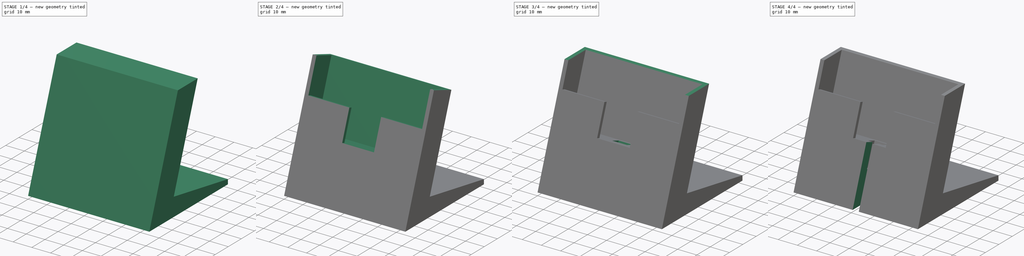
[diagram: build sequence overview — one tinted view per stage of 4, left to right]
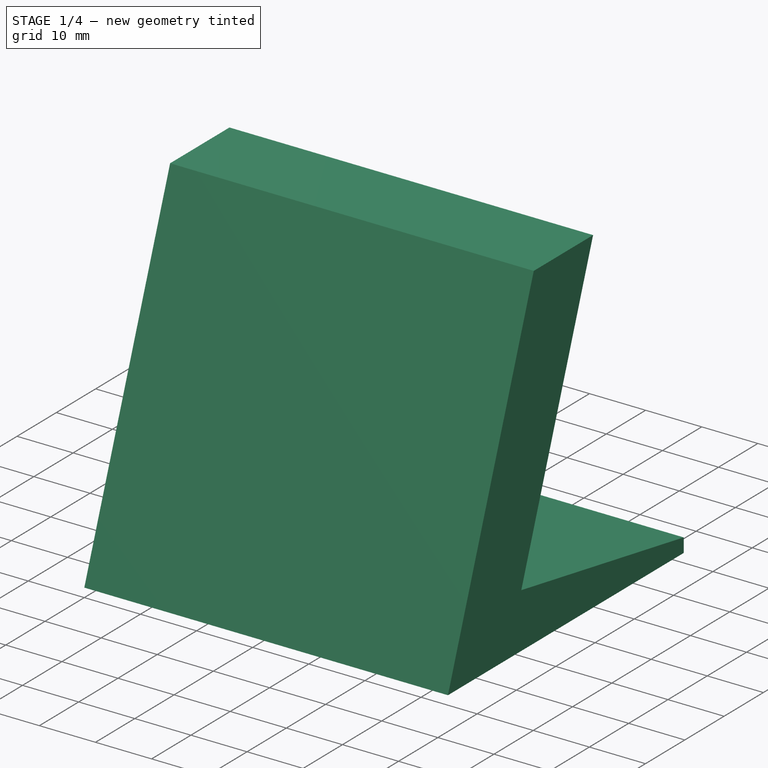
[diagram: stage 1 of 4 — iso view after this stage's code; geometry added in this stage tinted green]
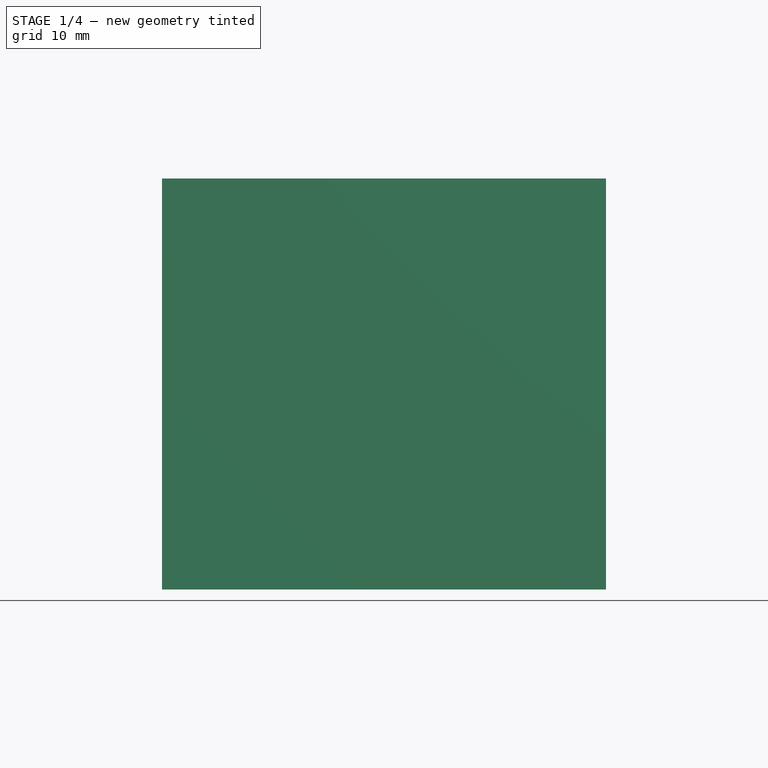
[diagram: stage 1 of 4 — front view after this stage's code; geometry added in this stage tinted green]
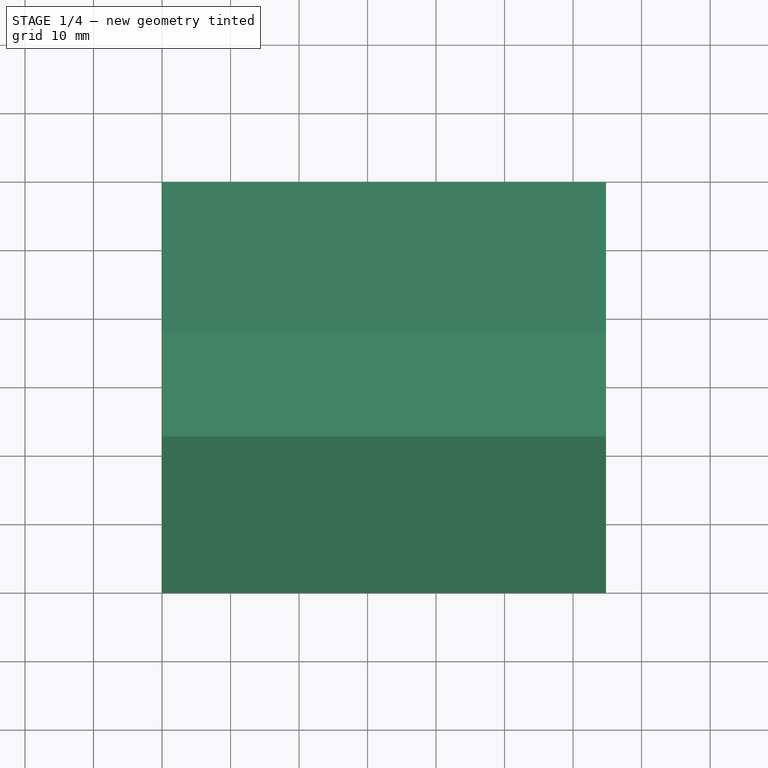
[diagram: stage 1 of 4 — top view after this stage's code; geometry added in this stage tinted green]
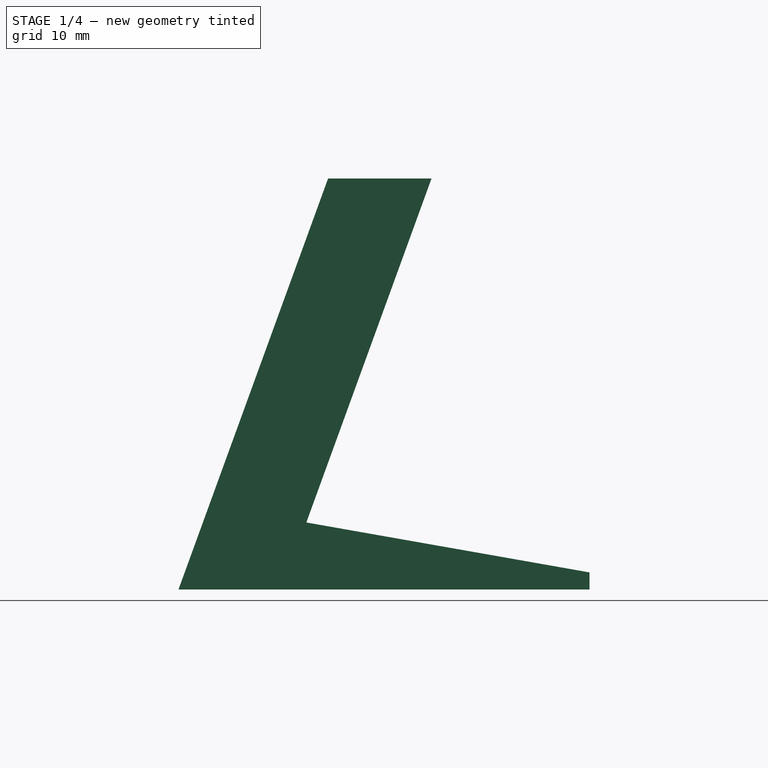
[diagram: stage 1 of 4 — right view after this stage's code; geometry added in this stage tinted green]
FCSTD DOCUMENT  (FreeCAD 0.16R6706 (Git))
Label: dock5
License: All rights reserved
LicenseURL: http://en.wikipedia.org/wiki/All_rights_reserved
objects: Sketcher::SketchObject×11, PartDesign::Pocket×10, PartDesign::Pad×1, PartDesign::Chamfer×1
note: 34 computed .brp shape members not serialized (recipe doc carries the construction recipe); baked Part::Feature solids carry a one-line shape summary decoded from their .brp

FEATURE [Sketcher::SketchObject] Sketch
  sketch-geometry (7):
    g0: LineSegment [constr] StartX=2 StartY=5.79943 StartZ=0 EndX=62.8 EndY=5.79943 EndZ=0
    g1: LineSegment StartX=0 StartY=0 StartZ=0 EndX=64.8 EndY=0 EndZ=0
    g2: LineSegment StartX=64.8 StartY=0 StartZ=0 EndX=64.8 EndY=60 EndZ=0
    g3: LineSegment StartX=64.8 StartY=60 StartZ=0 EndX=0 EndY=60 EndZ=0
    g4: LineSegment StartX=0 StartY=60 StartZ=0 EndX=0 EndY=0 EndZ=0
    g5: LineSegment [constr] StartX=2 StartY=5.79943 StartZ=0 EndX=0 EndY=5.79943 EndZ=0
    g6: LineSegment [constr] StartX=62.8 StartY=5.79943 StartZ=0 EndX=64.8 EndY=5.79943 EndZ=0
  constraints (20):
    c: Horizontal(g0)
    c: DistanceX(g0,g0) = 60.8
    c: Coincident(g1,g2)
    c: Coincident(g2,g3)
    c: Coincident(g3,g4)
    c: Coincident(g4,g1)
    c: Horizontal(g1)
    c: Horizontal(g3)
    c: Vertical(g2)
    c: Vertical(g4)
    c: Coincident(g1,g-1)
    c: Coincident(g5,g0)
    c: PointOnObject(g5,g4)
    c: Horizontal(g5)
    c: DistanceX(g5,g5) = 2
    c: Coincident(g6,g0)
    c: PointOnObject(g6,g2)
    c: Equal(g6,g5)
    c: Horizontal(g6)
    c: DistanceY(g2,g2) = 60
FEATURE [PartDesign::Pad] Pad
  Length = 60
  Length2 = 100
  Sketch = -> Sketch
  Type = 0
FEATURE [Sketcher::SketchObject] Sketch001
  ExternalGeometry = -> [Pad]
  Placement = pos=(64.8,0,0) rot=(0.57735,0.57735,0.57735;2.0944rad)
  Support = -> Pad [Face2]
  sketch-geometry (3):
    g0: LineSegment StartX=0 StartY=0 StartZ=0 EndX=0 EndY=60 EndZ=0
    g1: LineSegment StartX=0 StartY=0 StartZ=0 EndX=21.8382 EndY=60 EndZ=0
    g2: LineSegment StartX=21.8382 StartY=60 StartZ=0 EndX=0 EndY=60 EndZ=0
  constraints (7):
    c: Coincident(g0,g-1)
    c: Coincident(g0,g-4)
    c: Coincident(g1,g-1)
    c: PointOnObject(g1,g-4)
    c: Coincident(g2,g1)
    c: Coincident(g2,g0)
    c: Angle(g1,g-3) = 0.349066
FEATURE [PartDesign::Pocket] Pocket
  Length = 5
  Sketch = -> Sketch001
  Type = 1
FEATURE [Sketcher::SketchObject] Sketch002
  ExternalGeometry = -> [Pocket]
  Placement = pos=(64.8,0,0) rot=(0.57735,0.57735,0.57735;2.0944rad)
  Support = -> Pocket [Face3]
  sketch-geometry (4):
    g0: LineSegment StartX=36.9382 StartY=60 StartZ=0 EndX=18.6629 EndY=9.78885 EndZ=0
    g1: LineSegment StartX=18.6629 StartY=9.78885 StartZ=0 EndX=60 EndY=2.5 EndZ=0
    g2: LineSegment StartX=36.9382 StartY=60 StartZ=0 EndX=60 EndY=60 EndZ=0
    g3: LineSegment StartX=60 StartY=60 StartZ=0 EndX=60 EndY=2.5 EndZ=0
  constraints (11):
    c: PointOnObject(g0,g-3)
    c: Coincident(g1,g0)
    c: PointOnObject(g1,g-4)
    c: Parallel(g0,g-5)
    c: Coincident(g2,g0)
    c: Coincident(g2,g-4)
    c: Coincident(g3,g2)
    c: Coincident(g3,g1)
    c: DistanceX(g-5,g0) = 15.1
    c: DistanceY(g-4,g1) = 2.5
    c: Angle(g1,g0) = 1.39626
FEATURE [PartDesign::Pocket] Pocket001
  Length = 5
  Sketch = -> Sketch002
  Type = 1
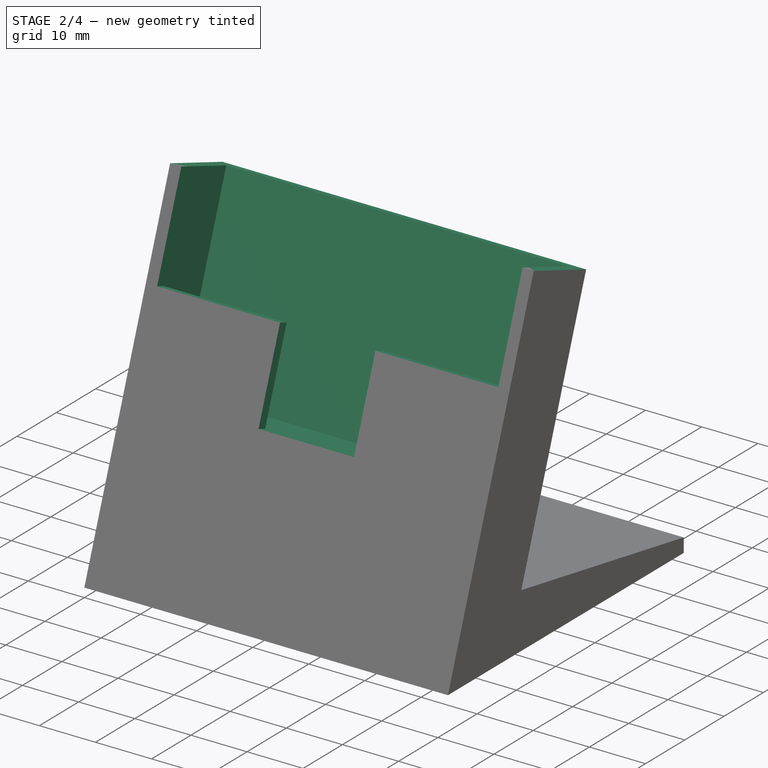
[diagram: stage 2 of 4 — iso view after this stage's code; geometry added in this stage tinted green]
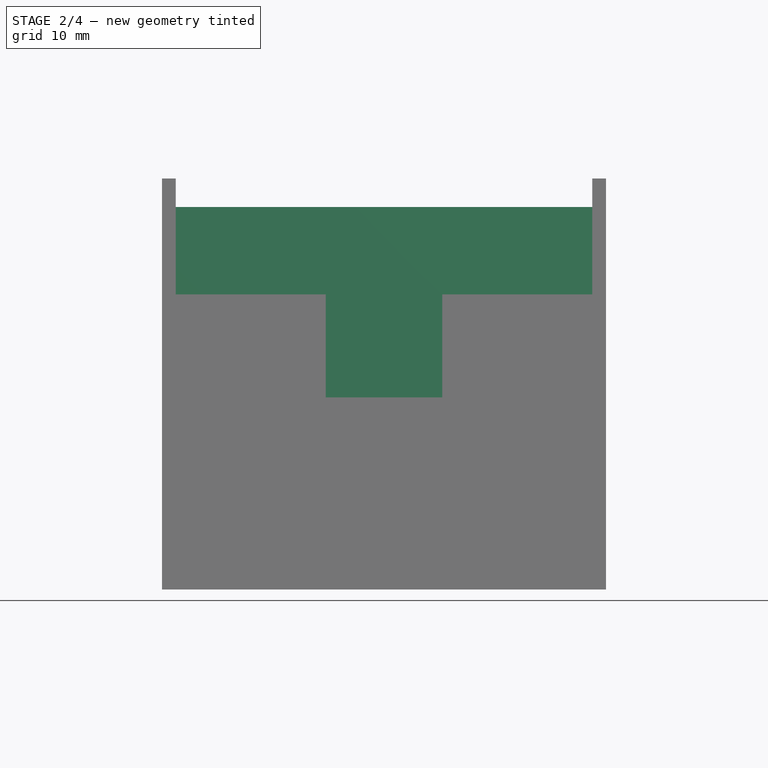
[diagram: stage 2 of 4 — front view after this stage's code; geometry added in this stage tinted green]
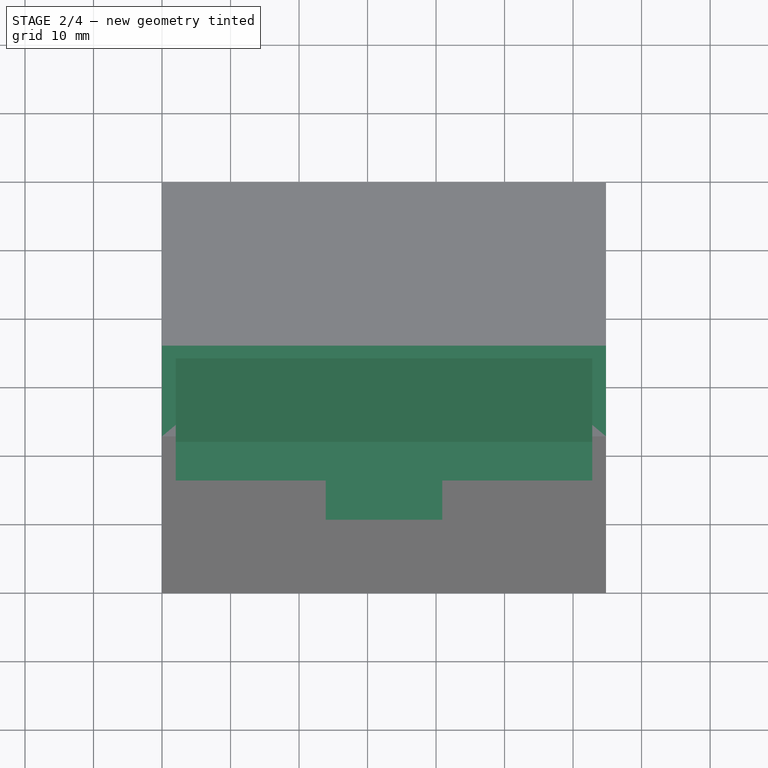
[diagram: stage 2 of 4 — top view after this stage's code; geometry added in this stage tinted green]
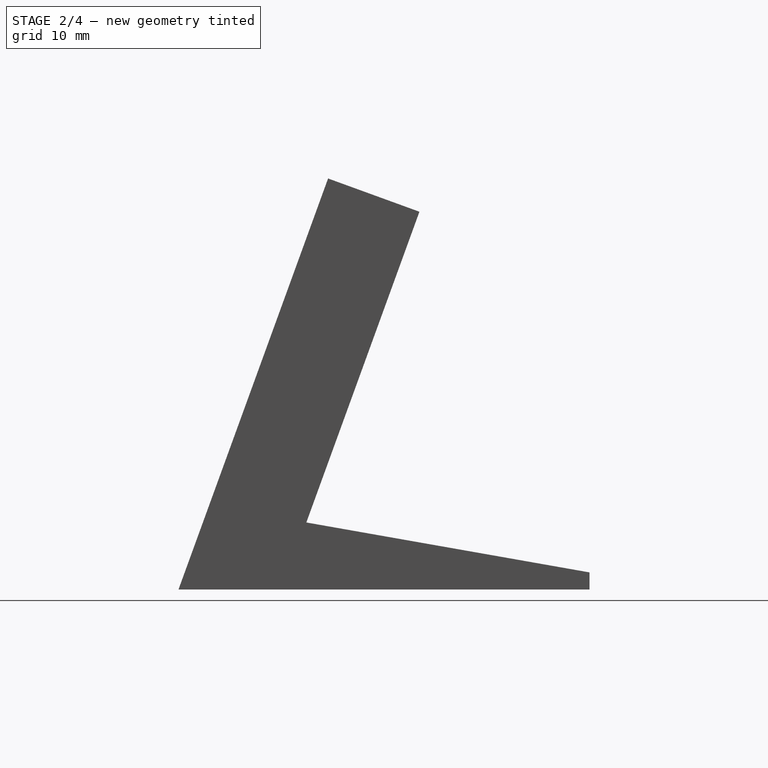
[diagram: stage 2 of 4 — right view after this stage's code; geometry added in this stage tinted green]
FEATURE [Sketcher::SketchObject] Sketch003
  ExternalGeometry = -> [Pocket001]
  Placement = pos=(64.8,0,0) rot=(0.57735,0.57735,0.57735;2.0944rad)
  Support = -> Pocket001 [Face3]
  sketch-geometry (3):
    g0: LineSegment StartX=21.8382 StartY=60 StartZ=0 EndX=35.1718 EndY=55.147 EndZ=0
    g1: LineSegment StartX=36.9382 StartY=60 StartZ=0 EndX=35.1718 EndY=55.147 EndZ=0
    g2: LineSegment StartX=36.9382 StartY=60 StartZ=0 EndX=21.8382 EndY=60 EndZ=0
  constraints (7):
    c: Coincident(g0,g-3)
    c: PointOnObject(g0,g-4)
    c: Coincident(g1,g-4)
    c: Coincident(g1,g0)
    c: Coincident(g2,g1)
    c: Coincident(g2,g0)
    c: Perpendicular(g-4,g0)
FEATURE [PartDesign::Pocket] Pocket002
  Length = 5
  Sketch = -> Sketch003
  Type = 1
FEATURE [Sketcher::SketchObject] Sketch004
  ExternalGeometry = -> [Pocket002]
  Placement = pos=(0,21.8382,60) rot=(-1,0,0;0.349066rad)
  Support = -> Pocket002 [Face6]
  sketch-geometry (8):
    g0: LineSegment StartX=2 StartY=12.1894 StartZ=0 EndX=62.8 EndY=12.1894 EndZ=0
    g1: LineSegment StartX=62.8 StartY=12.1894 StartZ=0 EndX=62.8 EndY=1.78936 EndZ=0
    g2: LineSegment StartX=62.8 StartY=1.78936 StartZ=0 EndX=2 EndY=1.78936 EndZ=0
    g3: LineSegment StartX=2 StartY=1.78936 StartZ=0 EndX=2 EndY=12.1894 EndZ=0
    g4: LineSegment [constr] StartX=2 StartY=12.1894 StartZ=0 EndX=0 EndY=12.1894 EndZ=0
    g5: LineSegment [constr] StartX=2 StartY=12.1894 StartZ=0 EndX=2 EndY=14.1894 EndZ=0
    g6: LineSegment [constr] StartX=62.8 StartY=12.1894 StartZ=0 EndX=64.8 EndY=12.1894 EndZ=0
    g7: LineSegment [constr] StartX=62.8 StartY=12.1894 StartZ=0 EndX=62.8 EndY=14.1894 EndZ=0
  constraints (25):
    c: Coincident(g0,g1)
    c: Coincident(g1,g2)
    c: Coincident(g2,g3)
    c: Coincident(g3,g0)
    c: Horizontal(g0)
    c: Horizontal(g2)
    c: Vertical(g1)
    c: Vertical(g3)
    c: Coincident(g4,g0)
    c: PointOnObject(g4,g-3)
    c: Horizontal(g4)
    c: DistanceX(g4,g4) = 2
    c: Coincident(g5,g0)
    c: PointOnObject(g5,g-4)
    c: Vertical(g5)
    c: DistanceY(g5,g5) = 2
    c: Coincident(g6,g0)
    c: PointOnObject(g6,g-6)
    c: Horizontal(g6)
    c: Equal(g6,g4)
    c: Coincident(g7,g0)
    c: PointOnObject(g7,g-4)
    c: Vertical(g7)
    c: Equal(g7,g5)
    c: Distance(g3) = 10.4
FEATURE [PartDesign::Pocket] Pocket003
  Length = 34
  Sketch = -> Sketch004
  Type = 0
FEATURE [Sketcher::SketchObject] Sketch005
  ExternalGeometry = -> [Pocket003]
  Placement = pos=(0,1.68145,-0.611997) rot=(0,0.819152,0.573576;3.14159rad)
  Support = -> Pocket003 [Face12]
  sketch-geometry (8):
    g0: LineSegment StartX=-62.8 StartY=45.8507 StartZ=0 EndX=-40.9 EndY=45.8507 EndZ=0
    g1: LineSegment StartX=-40.9 StartY=45.8507 StartZ=0 EndX=-40.9 EndY=29.8507 EndZ=0
    g2: LineSegment StartX=-40.9 StartY=29.8507 StartZ=0 EndX=-23.9 EndY=29.8507 EndZ=0
    g3: LineSegment StartX=-23.9 StartY=29.8507 StartZ=0 EndX=-23.9 EndY=45.8507 EndZ=0
    g4: LineSegment StartX=-23.9 StartY=45.8507 StartZ=0 EndX=-2 EndY=45.8507 EndZ=0
    g5: LineSegment StartX=-62.8 StartY=45.8507 StartZ=0 EndX=-62.8 EndY=63.8507 EndZ=0
    g6: LineSegment StartX=-2 StartY=45.8507 StartZ=0 EndX=-2 EndY=63.8507 EndZ=0
    g7: LineSegment StartX=-2 StartY=63.8507 StartZ=0 EndX=-62.8 EndY=63.8507 EndZ=0
  constraints (22):
    c: Horizontal(g0)
    c: Vertical(g1)
    c: PointOnObject(g0,g-4)
    c: Coincident(g0,g1)
    c: PointOnObject(g1,g-3)
    c: DistanceY(g1,g1) = 16
    c: Coincident(g2,g1)
    c: PointOnObject(g2,g-3)
    c: DistanceX(g2,g2) = 17
    c: Coincident(g2,g3)
    c: Vertical(g3)
    c: Equal(g3,g1)
    c: Coincident(g4,g3)
    c: PointOnObject(g4,g-5)
    c: Horizontal(g4)
    c: Equal(g4,g0)
    c: Coincident(g5,g0)
    c: Coincident(g5,g-6)
    c: Coincident(g6,g4)
    c: Coincident(g6,g-6)
    c: Coincident(g7,g6)
    c: Coincident(g7,g5)
FEATURE [PartDesign::Pocket] Pocket004
  Length = 5
  Sketch = -> Sketch005
  Type = 1
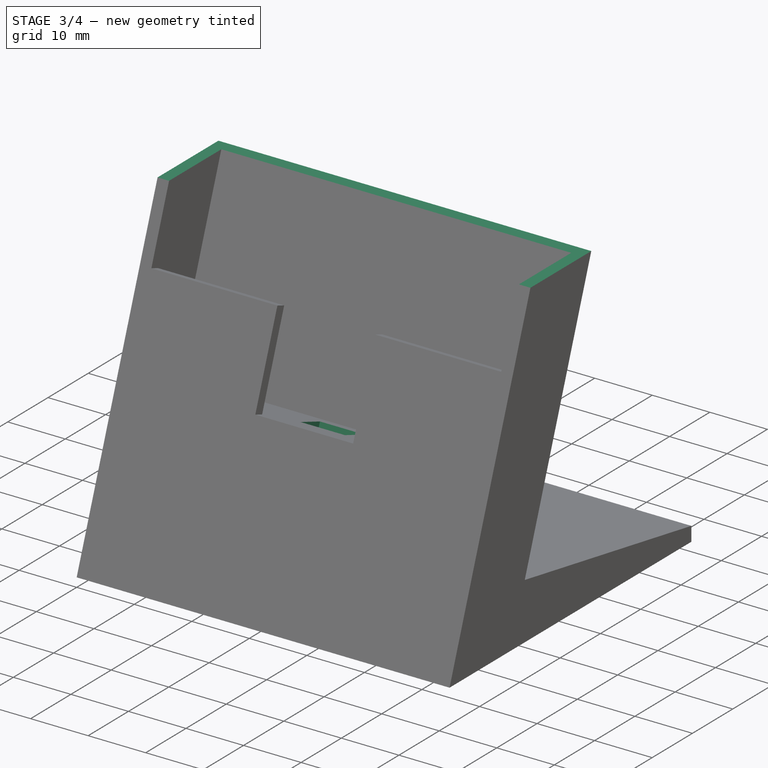
[diagram: stage 3 of 4 — iso view after this stage's code; geometry added in this stage tinted green]
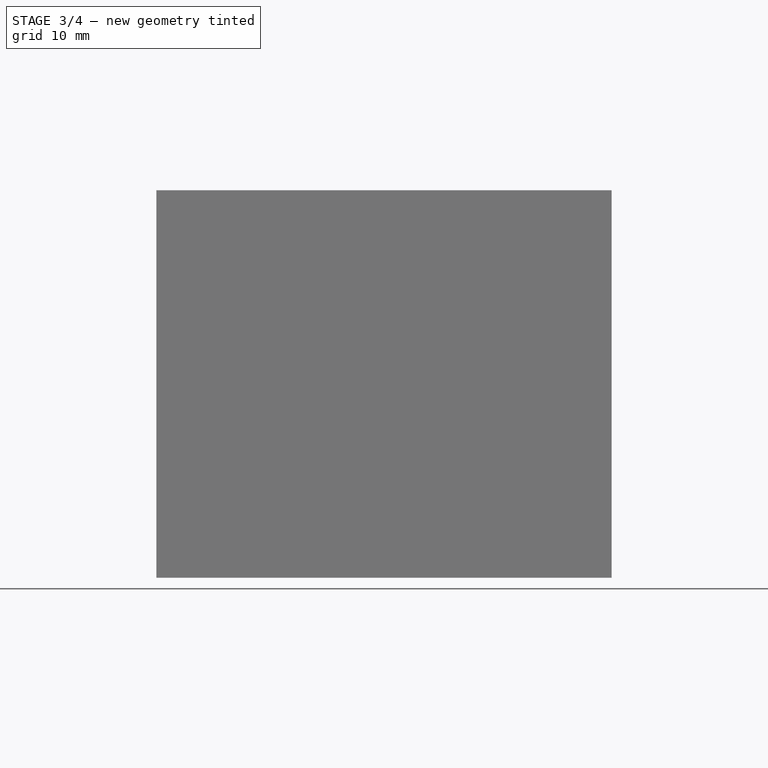
[diagram: stage 3 of 4 — front view after this stage's code; geometry added in this stage tinted green]
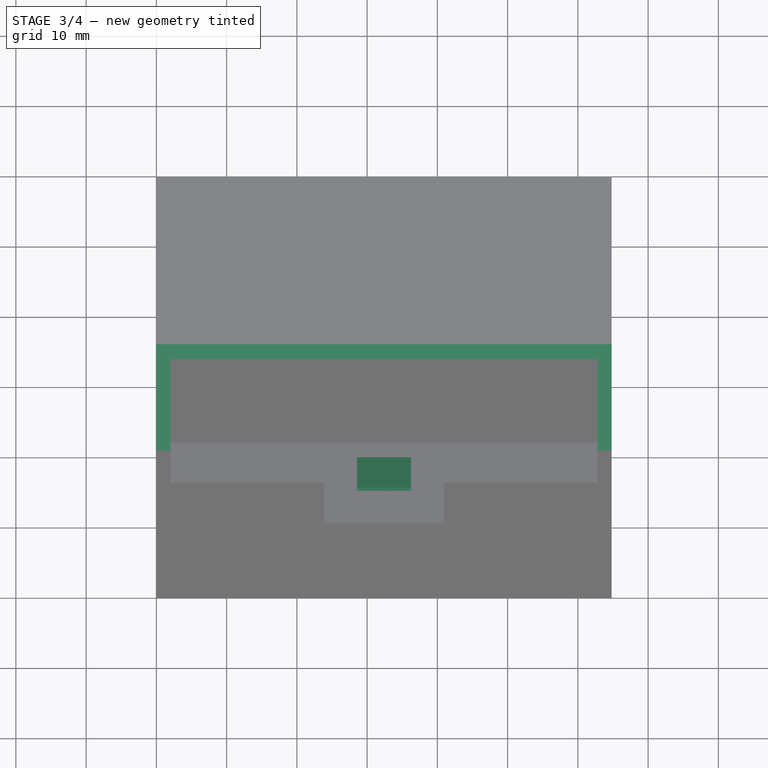
[diagram: stage 3 of 4 — top view after this stage's code; geometry added in this stage tinted green]
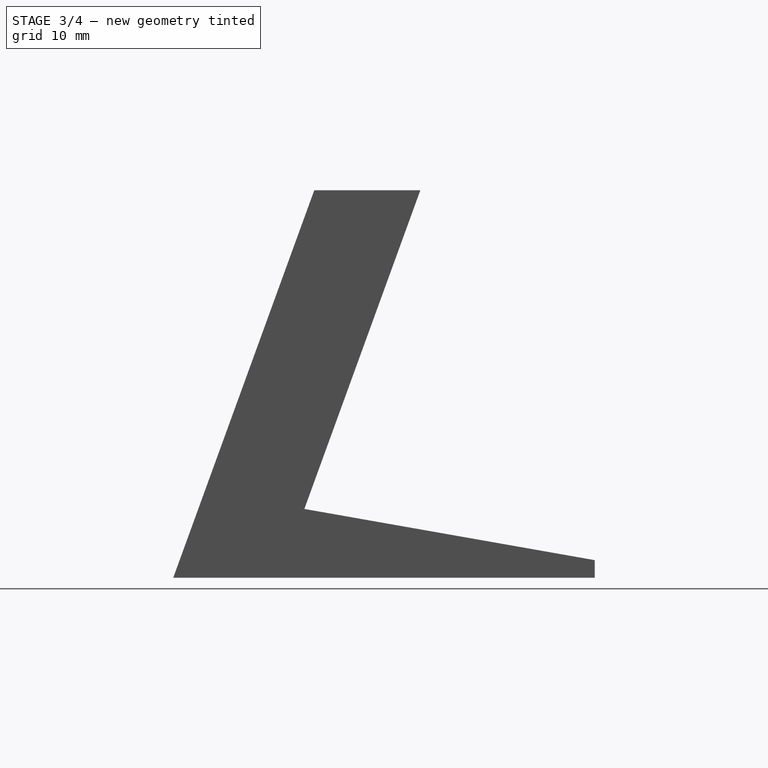
[diagram: stage 3 of 4 — right view after this stage's code; geometry added in this stage tinted green]
FEATURE [Sketcher::SketchObject] Sketch006
  ExternalGeometry = -> [Pocket004]
  Placement = pos=(64.8,0,0) rot=(0.57735,0.57735,0.57735;2.0944rad)
  Support = -> Pocket004 [Face3]
  sketch-geometry (3):
    g0: LineSegment StartX=35.1718 StartY=55.147 StartZ=0 EndX=20.0718 EndY=55.147 EndZ=0
    g1: LineSegment StartX=20.0718 StartY=55.147 StartZ=0 EndX=21.8382 EndY=60 EndZ=0
    g2: LineSegment StartX=21.8382 StartY=60 StartZ=0 EndX=35.1718 EndY=55.147 EndZ=0
  constraints (7):
    c: Coincident(g0,g-3)
    c: PointOnObject(g0,g-4)
    c: Horizontal(g0)
    c: Coincident(g1,g0)
    c: Coincident(g1,g-4)
    c: Coincident(g2,g1)
    c: Coincident(g2,g0)
FEATURE [PartDesign::Pocket] Pocket005
  Length = 5
  Sketch = -> Sketch006
  Type = 1
FEATURE [Sketcher::SketchObject] Sketch007
  ExternalGeometry = -> [Pocket005]
  Placement = pos=(0,10.2095,28.0505) rot=(-1,0,0;0.349066rad)
  Support = -> Pocket005 [Face20]
  sketch-geometry (7):
    g0: LineSegment StartX=28.55 StartY=9.98936 StartZ=0 EndX=36.25 EndY=9.98936 EndZ=0
    g1: LineSegment StartX=36.25 StartY=9.98936 StartZ=0 EndX=36.25 EndY=4.88936 EndZ=0
    g2: LineSegment StartX=36.25 StartY=4.88936 StartZ=0 EndX=28.55 EndY=4.88936 EndZ=0
    g3: LineSegment StartX=28.55 StartY=4.88936 StartZ=0 EndX=28.55 EndY=9.98936 EndZ=0
    g4: LineSegment [constr] StartX=28.55 StartY=9.98936 StartZ=0 EndX=2 EndY=9.98936 EndZ=0
    g5: LineSegment [constr] StartX=36.25 StartY=9.98936 StartZ=0 EndX=62.8 EndY=9.98936 EndZ=0
    g6: LineSegment [constr] StartX=28.55 StartY=9.98936 StartZ=0 EndX=28.55 EndY=12.1894 EndZ=0
  constraints (21):
    c: Coincident(g0,g1)
    c: Coincident(g1,g2)
    c: Coincident(g2,g3)
    c: Coincident(g3,g0)
    c: Horizontal(g0)
    c: Horizontal(g2)
    c: Vertical(g1)
    c: Vertical(g3)
    c: DistanceX(g0,g0) = 7.7
    c: DistanceY(g1,g1) = 5.1
    c: Coincident(g4,g0)
    c: PointOnObject(g4,g-5)
    c: Horizontal(g4)
    c: Coincident(g5,g0)
    c: PointOnObject(g5,g-4)
    c: Horizontal(g5)
    c: Equal(g5,g4)
    c: Coincident(g6,g0)
    c: PointOnObject(g6,g-3)
    c: Vertical(g6)
    c: DistanceY(g6,g6) = 2.2
FEATURE [PartDesign::Pocket] Pocket006
  Length = 12
  Sketch = -> Sketch007
  Type = 0
FEATURE [Sketcher::SketchObject] Sketch008
  ExternalGeometry = -> [Pocket006]
  Placement = pos=(0,6.10529,16.7741) rot=(-1,0,0;0.349066rad)
  Support = -> Pocket006 [Face26]
  sketch-geometry (6):
    g0: Circle CenterX=32.4 CenterY=7.43936 CenterZ=0 NormalX=0 NormalY=0 NormalZ=1 Radius=2.1
    g1: LineSegment [constr] StartX=32.4 StartY=7.43936 StartZ=0 EndX=28.55 EndY=7.43936 EndZ=0
    g2: LineSegment [constr] StartX=32.4 StartY=7.43936 StartZ=0 EndX=34.2174 EndY=8.49147 EndZ=0
    g3: LineSegment [constr] StartX=32.4 StartY=7.43936 StartZ=0 EndX=36.25 EndY=7.43936 EndZ=0
    g4: LineSegment [constr] StartX=32.4 StartY=7.43936 StartZ=0 EndX=32.4 EndY=9.98936 EndZ=0
    g5: LineSegment [constr] StartX=32.4 StartY=7.43936 StartZ=0 EndX=32.4 EndY=4.88936 EndZ=0
  constraints (17):
    c: Coincident(g1,g0)
    c: PointOnObject(g1,g-4)
    c: Horizontal(g1)
    c: Coincident(g2,g0)
    c: PointOnObject(g2,g0)
    c: Distance(g2) = 2.1
    c: Coincident(g3,g0)
    c: PointOnObject(g3,g-3)
    c: Horizontal(g3)
    c: Equal(g3,g1)
    c: Coincident(g4,g0)
    c: PointOnObject(g4,g-5)
    c: Vertical(g4)
    c: Coincident(g5,g0)
    c: PointOnObject(g5,g-6)
    c: Vertical(g5)
    c: Equal(g5,g4)
FEATURE [PartDesign::Pocket] Pocket007
  Length = 14
  Sketch = -> Sketch008
  Type = 1
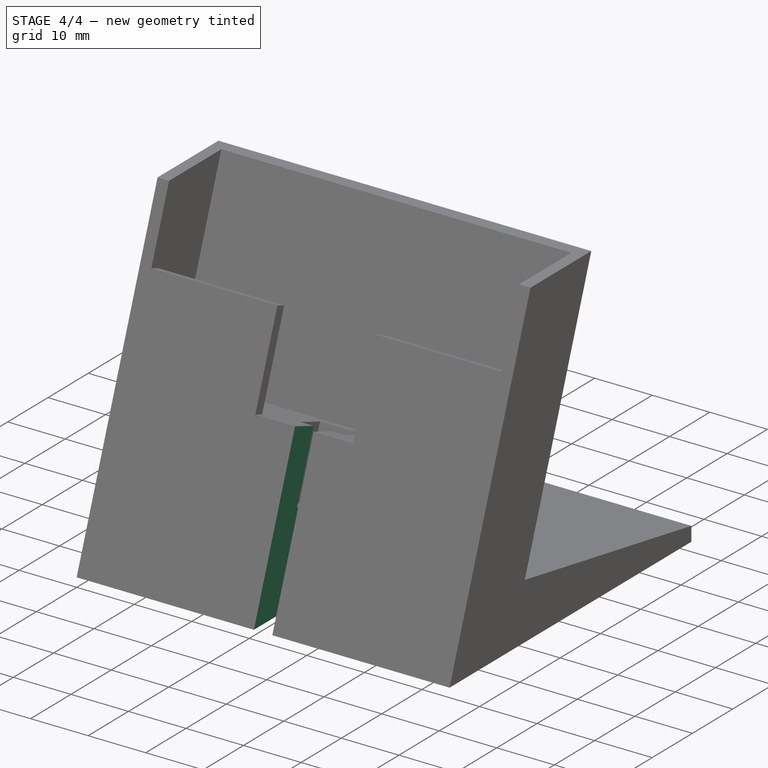
[diagram: stage 4 of 4 — iso view after this stage's code; geometry added in this stage tinted green]
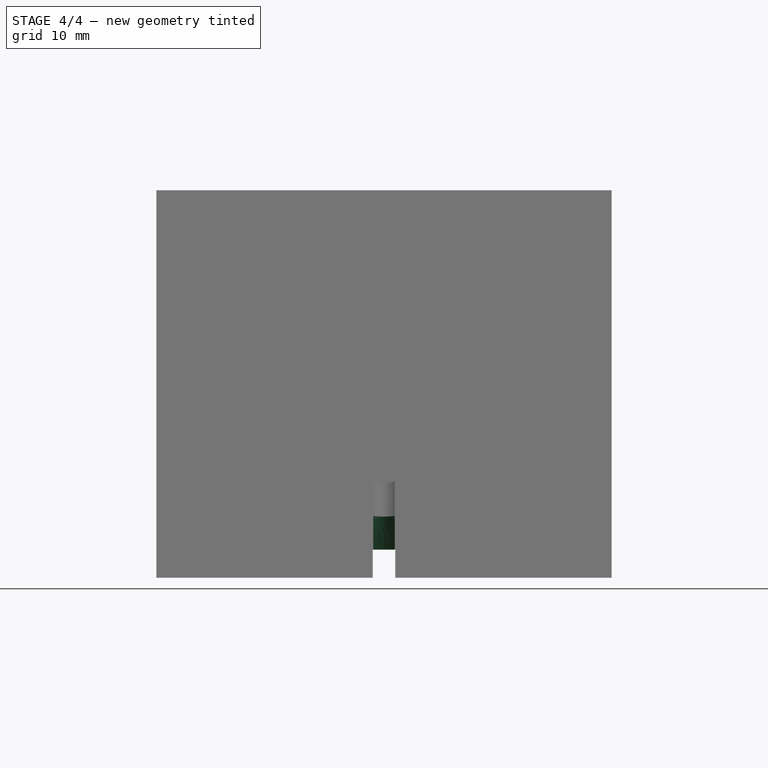
[diagram: stage 4 of 4 — front view after this stage's code; geometry added in this stage tinted green]
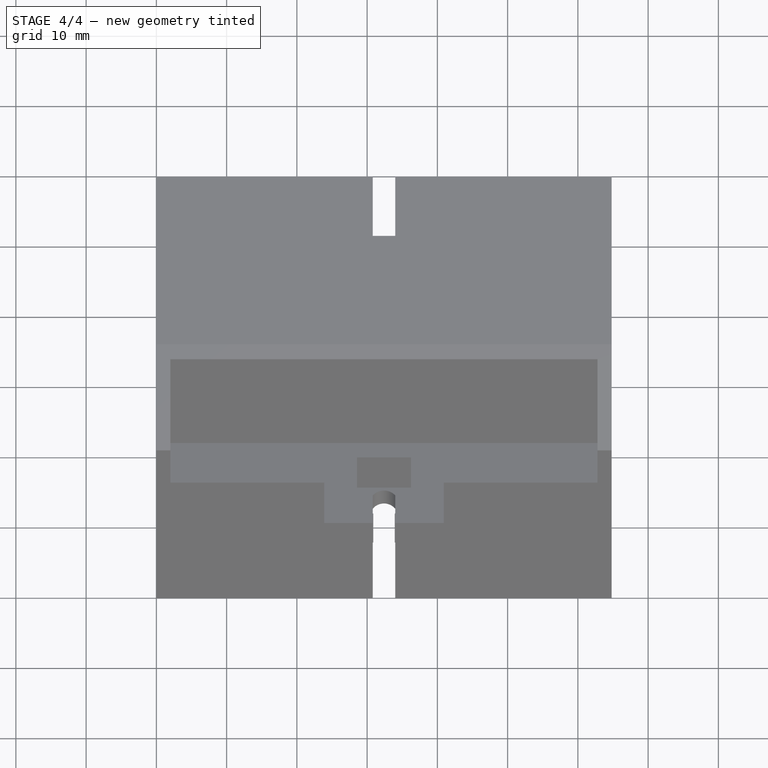
[diagram: stage 4 of 4 — top view after this stage's code; geometry added in this stage tinted green]
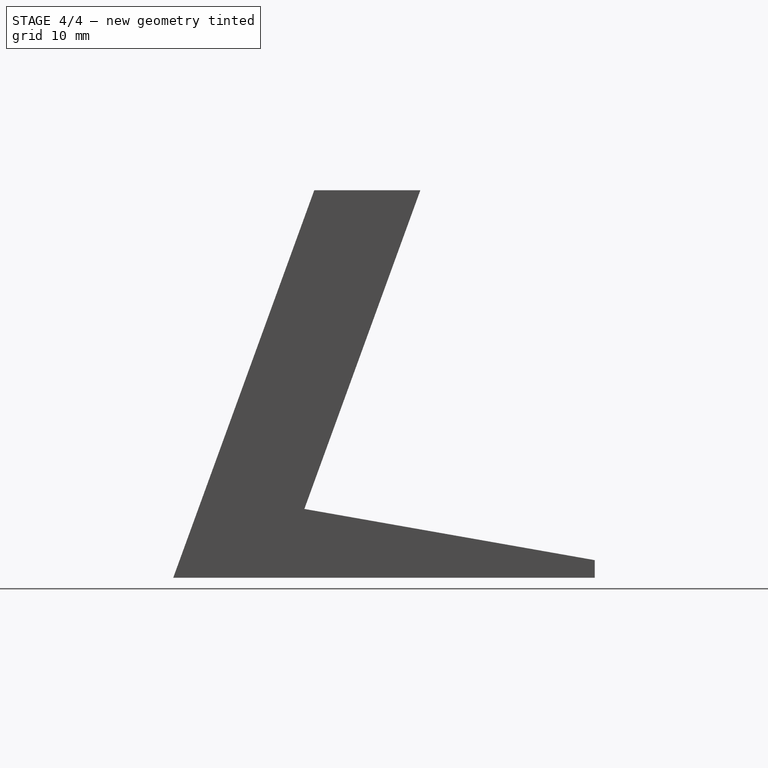
[diagram: stage 4 of 4 — right view after this stage's code; geometry added in this stage tinted green]
FEATURE [Sketcher::SketchObject] Sketch009
  ExternalGeometry = -> [Pocket007]
  Placement = pos=(0,0,0) rot=(1,0,0;1.22173rad)
  Support = -> Pocket007 [Face2]
  sketch-geometry (6):
    g0: LineSegment StartX=30.8 StartY=29.8507 StartZ=0 EndX=34 EndY=29.8507 EndZ=0
    g1: LineSegment StartX=34 StartY=29.8507 StartZ=0 EndX=34 EndY=0 EndZ=0
    g2: LineSegment StartX=34 StartY=0 StartZ=0 EndX=30.8 EndY=0 EndZ=0
    g3: LineSegment StartX=30.8 StartY=0 StartZ=0 EndX=30.8 EndY=29.8507 EndZ=0
    g4: LineSegment [constr] StartX=34 StartY=21.0859 StartZ=0 EndX=64.8 EndY=21.0859 EndZ=0
    g5: LineSegment [constr] StartX=30.8 StartY=20.2812 StartZ=0 EndX=0 EndY=20.2812 EndZ=0
  constraints (14):
    c: Coincident(g0,g1)
    c: Coincident(g1,g2)
    c: Coincident(g2,g3)
    c: Coincident(g3,g0)
    c: Horizontal(g0)
    c: Horizontal(g2)
    c: Vertical(g1)
    c: Vertical(g3)
    c: PointOnObject(g4,g1)
    c: Horizontal(g4)
    c: PointOnObject(g5,g3)
    c: Horizontal(g5)
    c: Equal(g5,g4)
    c: DistanceX(g2,g2) = 3.2
FEATURE [PartDesign::Pocket] Pocket008
  Length = 6
  Sketch = -> Sketch009
  Type = 0
  UpToFace = -> Pocket007 [Face24]
FEATURE [Sketcher::SketchObject] Sketch010
  ExternalGeometry = -> [Pocket008]
  Placement = pos=(0,60,0) rot=(0,0.707107,0.707107;3.14159rad)
  Support = -> Pocket008 [Face3]
  sketch-geometry (6):
    g0: LineSegment StartX=-34 StartY=0 StartZ=0 EndX=-30.8 EndY=0 EndZ=0
    g1: LineSegment StartX=-30.8 StartY=0 StartZ=0 EndX=-30.8 EndY=4 EndZ=0
    g2: LineSegment StartX=-30.8 StartY=4 StartZ=0 EndX=-34 EndY=4 EndZ=0
    g3: LineSegment StartX=-34 StartY=4 StartZ=0 EndX=-34 EndY=0 EndZ=0
    g4: LineSegment [constr] StartX=-30.8 StartY=0 StartZ=0 EndX=0 EndY=0 EndZ=0
    g5: LineSegment [constr] StartX=-34 StartY=0 StartZ=0 EndX=-64.8 EndY=0 EndZ=0
  constraints (16):
    c: Coincident(g0,g1)
    c: Coincident(g1,g2)
    c: Coincident(g2,g3)
    c: Coincident(g3,g0)
    c: Horizontal(g0)
    c: Horizontal(g2)
    c: Vertical(g1)
    c: Vertical(g3)
    c: PointOnObject(g0,g-1)
    c: DistanceX(g2,g2) = 3.2
    c: DistanceY(g1,g1) = 4
    c: Coincident(g4,g0)
    c: Coincident(g4,g-1)
    c: Coincident(g5,g0)
    c: Coincident(g5,g-3)
    c: Equal(g4,g5)
FEATURE [PartDesign::Pocket] Pocket009
  Length = 5
  Sketch = -> Sketch010
  Type = 1
FEATURE [PartDesign::Chamfer] Chamfer
  Base = -> Pocket009 [Edge25]
  Size = 5
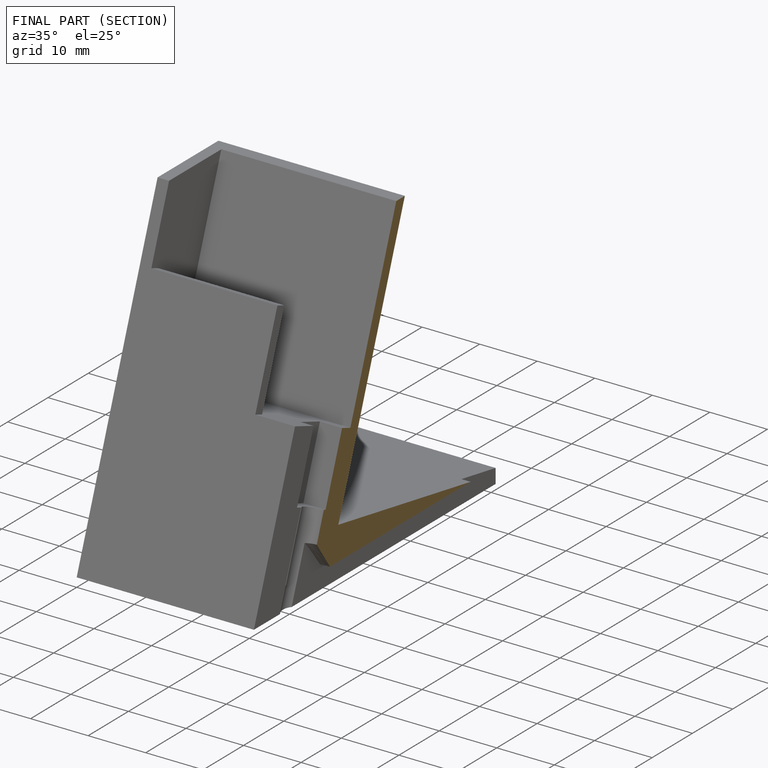
[diagram: finished part — half-section view (interior)]
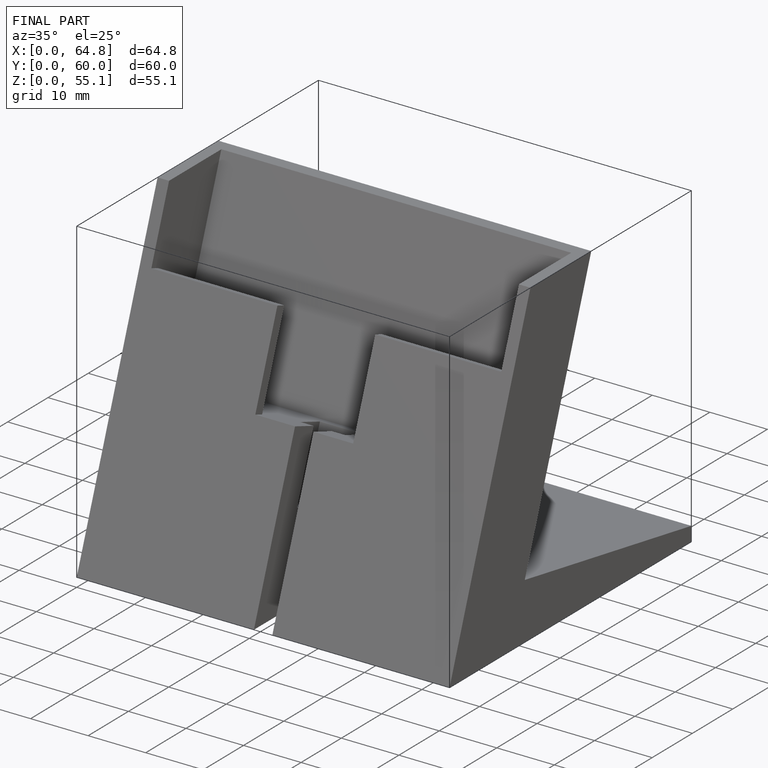
[diagram: finished part — iso view with bounding-box wireframe]
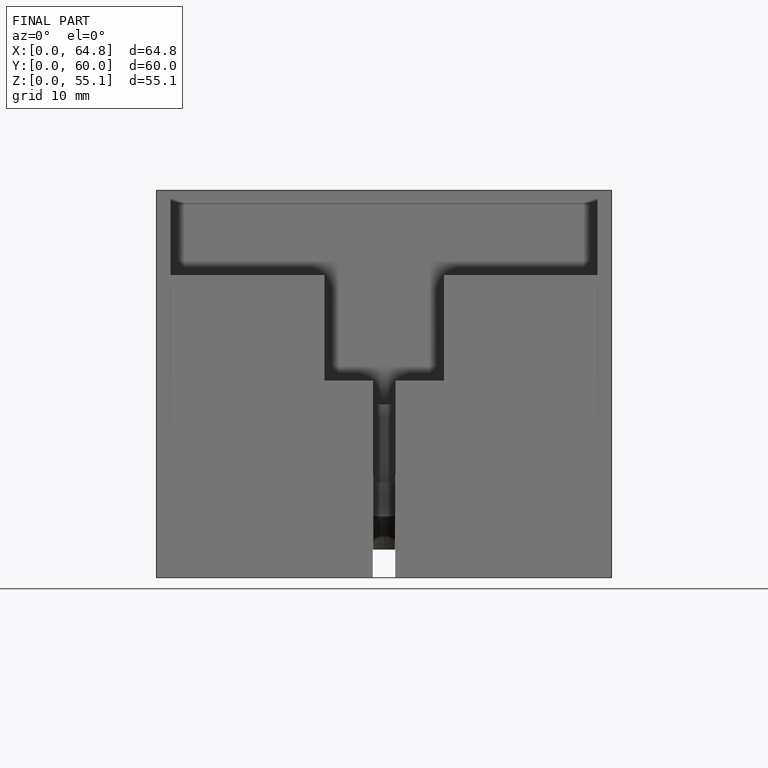
[diagram: finished part — front view with bounding-box wireframe]
